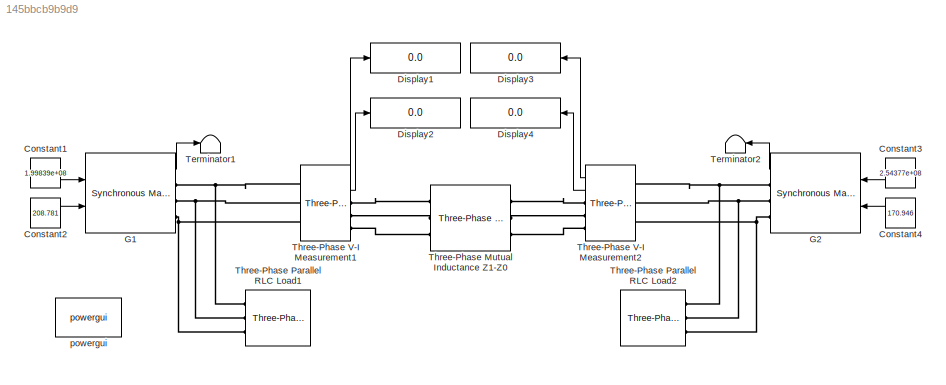
MODEL slx_145bbcb9b9d9
KIND model
BLOCK [Constant] Constant1
  Value = 1.99839e+08
BLOCK [Constant] Constant2
  Value = 208.781
BLOCK [Constant] Constant3
  Value = 2.54377e+08
BLOCK [Constant] Constant4
  Value = 170.946
BLOCK [Display] Display1
  Decimation = 1
  Ports = [1]
BLOCK [Display] Display2
  Decimation = 1
  Ports = [1]
BLOCK [Display] Display3
  Decimation = 1
  Ports = [1]
BLOCK [Display] Display4
  Decimation = 1
  Ports = [1]
BLOCK [Reference] G1  REF=powerlib/Machines/Synchronous Machine
SI Fundamental
  BusType = PV
  Dampers1 = [ 1.1900E-02  4.9076E-04  2.0081E-02  1.0365E-03 ]
  Dampers2 = [ 0.0664, 1.387e-3, 0.0292, 6.896e-4, 7.907e-3, 2.477e-3]
  DisplayVfd = off
  Field = [ 5.9013E-04  3.0712E-04 ]
  InitialConditions = [0 -101.826 20539.1 20539.1 20539.1 -77.7777 162.222 42.2223 208.781]
  IterativeModel = Trapezoidal non iterative
  LoadFlowParameters = [1 198000000 11000 0 0]
  MeasurementBus = off
  Mechanical = [ 3.895e6 0 20 ]
  MechanicalLoad = Mechanical power Pm
  NominalParameters = [ 100E6  11E3   50   1087 ]
  PLF = 0
  PolePairs = 20
  Ports = [2, 1, 0, 0, 0, 0, 3]
  Pref = 0
  PresetModel = No
  QLF = 0
  Qmax = inf
  Qmin = -inf
  Qref = 0
  RotorType = Salient-pole
  Saturation = [695.64,774.7,917.5,1001.6,1082.2,1175.9,1293.6,1430.2,1583.7;9660,10623,12243,13063,13757,14437,15180,15890,16567]
  SetSaturation = off
  ShowDetailedParameters = on
  SourceBlock = powerlib/Machines/Synchronous Machine\nSI Fundamental
  SourceType = Synchronous Machine
  Stator = [ 2.9069E-03  3.0892E-04  3.2164E-03  9.7153E-04 ]
  TsBlock = -1
  TsPowergui = 0
  Units = SI fundamental parameters
BLOCK [Reference] G2  REF=powerlib/Machines/Synchronous Machine
SI Fundamental
  BusType = PV
  Dampers1 = [ 1.1900E-02  4.9076E-04  2.0081E-02  1.0365E-03 ]
  Dampers2 = [ 0.0664, 1.387e-3, 0.0292, 6.896e-4, 7.907e-3, 2.477e-3]
  DisplayVfd = off
  Field = [ 5.9013E-04  3.0712E-04 ]
  InitialConditions = [0 -55.8791 19457.8 19457.8 19457.8 -15.401 -135.401 104.599 170.946]
  IterativeModel = Trapezoidal non iterative
  LoadFlowParameters = [2 230000000 0 0 0]
  MeasurementBus = off
  Mechanical = [ 3.895e6 0 20 ]
  MechanicalLoad = Mechanical power Pm
  NominalParameters = [ 100E6  11E3   50   1087 ]
  PLF = 0
  PolePairs = 20
  Ports = [2, 1, 0, 0, 0, 0, 3]
  Pref = 0
  PresetModel = No
  QLF = 0
  Qmax = inf
  Qmin = -inf
  Qref = 0
  RotorType = Salient-pole
  Saturation = [695.64,774.7,917.5,1001.6,1082.2,1175.9,1293.6,1430.2,1583.7;9660,10623,12243,13063,13757,14437,15180,15890,16567]
  SetSaturation = off
  ShowDetailedParameters = on
  SourceBlock = powerlib/Machines/Synchronous Machine\nSI Fundamental
  SourceType = Synchronous Machine
  Stator = [ 2.9069E-03  3.0892E-04  3.2164E-03  9.7153E-04 ]
  TsBlock = -1
  TsPowergui = 0
  Units = SI fundamental parameters
BLOCK [Terminator] Terminator1
BLOCK [Terminator] Terminator2
BLOCK [Reference] Three-Phase Mutual Inductance Z1-Z0  REF=powerlib/Elements/Three-Phase
Mutual Inductance
Z1-Z0
  AttributesFormatString = \n
  LConnTagsString = a|b|c
  Ports = [0, 0, 0, 0, 0, 3, 3]
  PositiveSequence = [2.199780e-01 2.801232e-03]
  RConnTagsString = A|B|C
  SourceBlock = powerlib/Elements/Three-Phase\nMutual Inductance\nZ1-Z0
  SourceType = Three-Phase Mutual Inductance Z1-Z0
  ZeroSequence = [4.399560e-01 5.602464e-03]
BLOCK [Reference] Three-Phase Parallel RLC Load1  REF=powerlib/Elements/Three-Phase
Parallel RLC Load
  ActivePower = 264E6
  AttributesFormatString = \n
  CapacitivePower = 0
  Configuration = Y (grounded)
  InductivePower = 154E6
  LConnTagsString = A|B|C
  LoadType = constant Z
  Measurements = None
  NominalFrequency = 50
  NominalVoltage = 11E3
  Ports = [0, 0, 0, 0, 0, 3]
  SourceBlock = powerlib/Elements/Three-Phase\nParallel RLC Load
  SourceType = Three-Phase Parallel RLC Load
BLOCK [Reference] Three-Phase Parallel RLC Load2  REF=powerlib/Elements/Three-Phase
Parallel RLC Load
  ActivePower = 176E6
  AttributesFormatString = \n
  CapacitivePower = 0
  Configuration = Y (grounded)
  InductivePower = 66E6
  LConnTagsString = A|B|C
  LoadType = constant Z
  Measurements = None
  NominalFrequency = 50
  NominalVoltage = 11E3
  Ports = [0, 0, 0, 0, 0, 3]
  SourceBlock = powerlib/Elements/Three-Phase\nParallel RLC Load
  SourceType = Three-Phase Parallel RLC Load
BLOCK [Reference] Three-Phase V-I Measurement1  REF=powerlib/Measurements/Three-Phase
V-I Measurement
  CurrentMeasurement = yes
  Ipu = off
  LabelI = Iabc
  LabelV = Vabc
  OutputType = Complex
  PSBequivalent = 0
  Pbase = 100e6
  PhasorSimulation = on
  Ports = [0, 2, 0, 0, 0, 3, 3]
  SetLabelI = off
  SetLabelV = off
  SourceBlock = powerlib/Measurements/Three-Phase\nV-I Measurement
  SourceType = Three-Phase VI Measurement
  Vbase = 500e3
  VoltageMeasurement = phase-to-ground
  Vpu = off
  VpuLL = off
BLOCK [Reference] Three-Phase V-I Measurement2  REF=powerlib/Measurements/Three-Phase
V-I Measurement
  CurrentMeasurement = yes
  Ipu = off
  LabelI = Iabc
  LabelV = Vabc
  OutputType = Complex
  PSBequivalent = 0
  Pbase = 100e6
  PhasorSimulation = on
  Ports = [0, 2, 0, 0, 0, 3, 3]
  SetLabelI = off
  SetLabelV = off
  SourceBlock = powerlib/Measurements/Three-Phase\nV-I Measurement
  SourceType = Three-Phase VI Measurement
  Vbase = 500e3
  VoltageMeasurement = phase-to-ground
  Vpu = off
  VpuLL = off
BLOCK [Reference] powergui  REF=powerlib/powergui
  DisableRonSwitches = off
  DisableSnubberDevices = off
  DisableVfSwitches = off
  DisplayEquations = off
  DisplayStyle = 1
  EnableUseOfTLC = off
  ErrMax = 1e-4
  Frange = [0:2:500]
  FreqAxis = off
  FunctionMessages = off
  HookPort = off
  Interpol = off
  Iterations = 50
  MaxFrequency = 1000
  Pbase = 100e6
  Ports = []
  Priority = 1
  ResistiveCurrentMeasurement = off
  RestoreLinks = warning
  RmsSteady = 1
  SPID = off
  SampleTime = 50e-6
  ShowGrid = off
  SolverType = Tustin/Backward Euler (TBE)
  SourceBlock = powerlib/powergui
  SourceType = PSB option menu block
  StartTime = 0.0
  SwTol = 0
  Ts = 100
  UnitsV = V
  UnitsW = W
  UserDataPersistent = on
  Xlog = on
  Ylog = off
  ZoomFFT = off
  cycles = 1
  display = off
  echomessages = off
  frequency = 50
  frequencyindice = 50
  frequencyindicesteady = 1
  fundamental = 60
  methode = off
  save = off
  structure = 0
  variable = ZData
  x0status = blocks
LINE Constant1:1 -> G1:1
LINE Constant2:1 -> G1:2
LINE Constant3:1 -> G2:1
LINE Constant4:1 -> G2:2
LINE G1:1 -> Terminator1:1
LINE G2:1 -> Terminator2:1
LINE Three-Phase V-I Measurement1:1 -> Display1:1
LINE Three-Phase V-I Measurement1:2 -> Display2:1
LINE Three-Phase V-I Measurement2:1 -> Display3:1
LINE Three-Phase V-I Measurement2:2 -> Display4:1
PNET net1: G1:RConn1 -- Three-Phase Parallel RLC Load1:LConn1 -- Three-Phase V-I Measurement1:LConn1
PNET net2: G1:RConn2 -- Three-Phase Parallel RLC Load1:LConn2 -- Three-Phase V-I Measurement1:LConn2
PNET net3: G1:RConn3 -- Three-Phase Parallel RLC Load1:LConn3 -- Three-Phase V-I Measurement1:LConn3
PNET net4: G2:RConn1 -- Three-Phase Parallel RLC Load2:LConn1 -- Three-Phase V-I Measurement2:LConn1
PNET net5: G2:RConn2 -- Three-Phase Parallel RLC Load2:LConn2 -- Three-Phase V-I Measurement2:LConn2
PNET net6: G2:RConn3 -- Three-Phase Parallel RLC Load2:LConn3 -- Three-Phase V-I Measurement2:LConn3
PLINE Three-Phase Mutual Inductance Z1-Z0:LConn1 -- Three-Phase V-I Measurement1:RConn1
PLINE Three-Phase Mutual Inductance Z1-Z0:LConn2 -- Three-Phase V-I Measurement1:RConn2
PLINE Three-Phase Mutual Inductance Z1-Z0:LConn3 -- Three-Phase V-I Measurement1:RConn3
PLINE Three-Phase Mutual Inductance Z1-Z0:RConn1 -- Three-Phase V-I Measurement2:RConn1
PLINE Three-Phase Mutual Inductance Z1-Z0:RConn2 -- Three-Phase V-I Measurement2:RConn2
PLINE Three-Phase Mutual Inductance Z1-Z0:RConn3 -- Three-Phase V-I Measurement2:RConn3
note: PNET lines group multi-terminal physical nets as a canonical sorted terminal list (undirected conserving connections); 2-terminal nets keep the pairwise PLINE form
